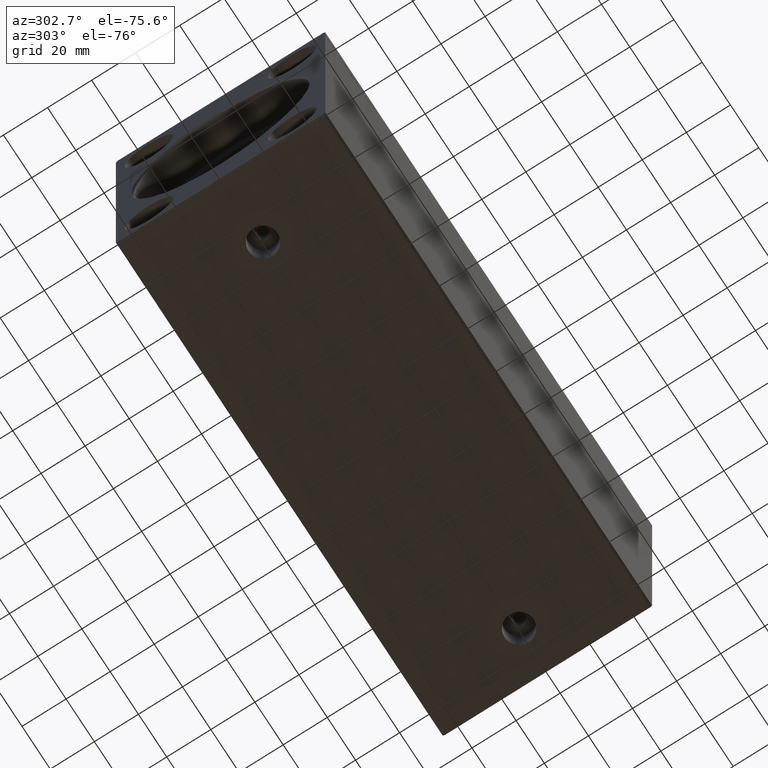
[diagram: clean part render]
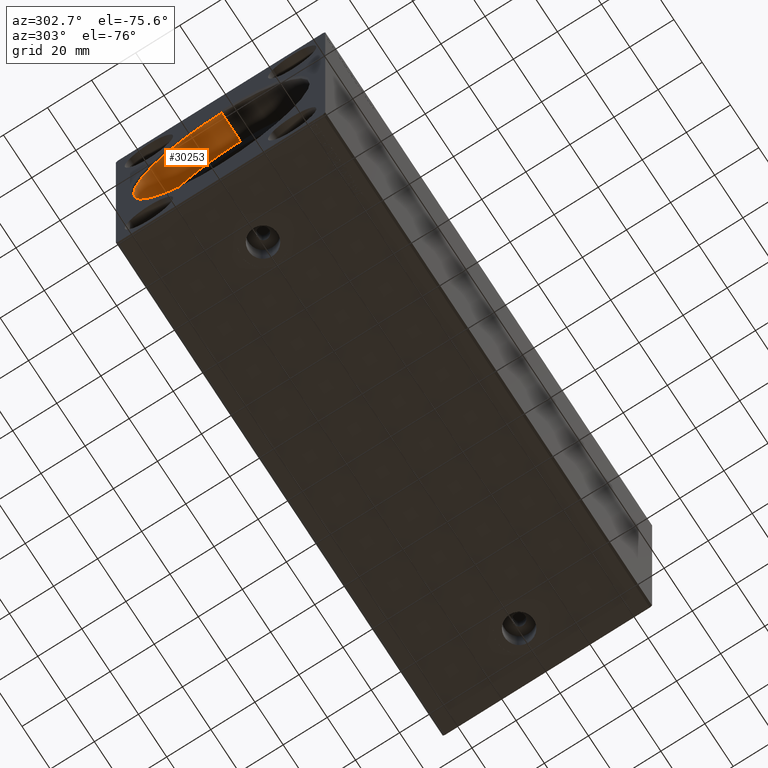
[diagram: same view with one face highlighted and labeled with its STEP entity id]
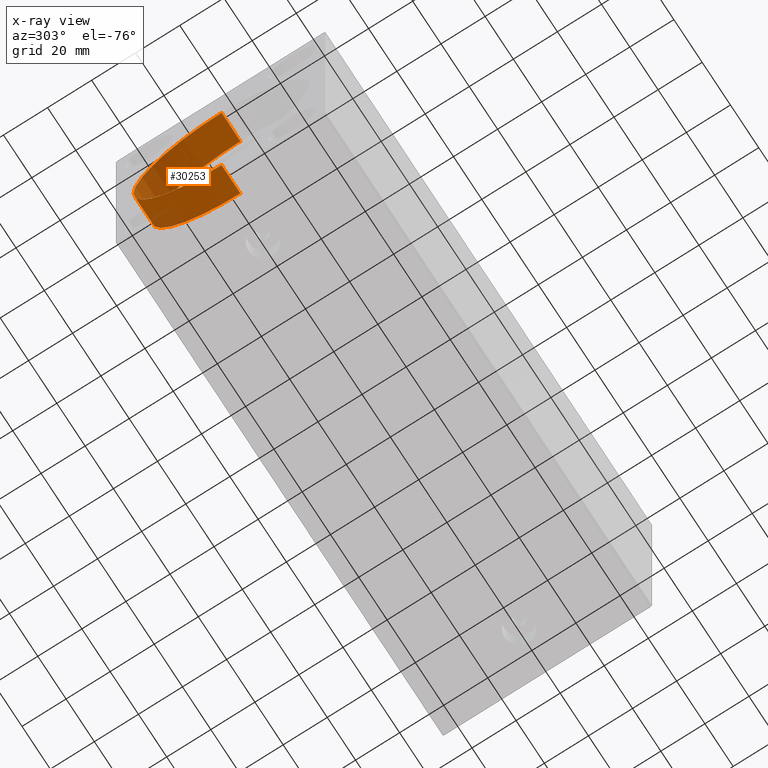
[diagram: x-ray of the same camera — body ghosted, the highlighted face saturated]
A machine part, auxiliary view. The second image highlights one B-rep face of the part: STEP entity #30253.
The next image is the same camera in x-ray: the body ghosted, the highlighted face saturated — about 8% of this face is hidden behind the body in this view.
In plain terms, the highlighted cylindrical surface (partial cylindrical patch) has radius 40 mm, axis along (-1, -0, -0).
Its self-contained STEP definition (entity closure, byte-faithful):
#900 = CARTESIAN_POINT ( 'NONE',  ( 0.7000000000000130562, 0.000000000000000000, 40.00000000000000000 ) ) ;
#2201 = CIRCLE ( 'NONE', #26196, 40.00000000000000000 ) ;
#2595 = DIRECTION ( 'NONE',  ( 0.000000000000000000, 0.000000000000000000, -1.000000000000000000 ) ) ;
#5926 = EDGE_CURVE ( 'NONE', #30154, #18855, #2201, .T. ) ;
#6734 = VERTEX_POINT ( 'NONE', #26681 ) ;
#8164 = CARTESIAN_POINT ( 'NONE',  ( 0.7000000000000130562, 4.898587196589413026E-15, -40.00000000000000000 ) ) ;
#8746 = CARTESIAN_POINT ( 'NONE',  ( 14.00000000000000000, 0.000000000000000000, 40.00000000000000000 ) ) ;
#10213 = EDGE_CURVE ( 'NONE', #38179, #30154, #15008, .T. ) ;
#11170 = EDGE_LOOP ( 'NONE', ( #11778, #41192, #34983, #39604 ) ) ;
#11762 = LINE ( 'NONE', #14985, #19685 ) ;
#11778 = ORIENTED_EDGE ( 'NONE', *, *, #30790, .F. ) ;
#12496 = DIRECTION ( 'NONE',  ( -1.000000000000000000, -0.000000000000000000, -0.000000000000000000 ) ) ;
#14985 = CARTESIAN_POINT ( 'NONE',  ( 14.00000000000000000, 4.898587196589413026E-15, -40.00000000000000000 ) ) ;
#15008 = LINE ( 'NONE', #15218, #30397 ) ;
#15218 = CARTESIAN_POINT ( 'NONE',  ( 14.00000000000000000, 0.000000000000000000, 40.00000000000000000 ) ) ;
#18726 = FACE_OUTER_BOUND ( 'NONE', #11170, .T. ) ;
#18855 = VERTEX_POINT ( 'NONE', #8164 ) ;
#19685 = VECTOR ( 'NONE', #25069, 1000.000000000000000 ) ;
#22359 = DIRECTION ( 'NONE',  ( 0.000000000000000000, 0.000000000000000000, 1.000000000000000000 ) ) ;
#23128 = AXIS2_PLACEMENT_3D ( 'NONE', #31833, #12496, #22359 ) ;
#23204 = AXIS2_PLACEMENT_3D ( 'NONE', #23756, #33426, #24184 ) ;
#23756 = CARTESIAN_POINT ( 'NONE',  ( 14.00000000000000000, 0.000000000000000000, 0.000000000000000000 ) ) ;
#24184 = DIRECTION ( 'NONE',  ( 0.000000000000000000, 0.000000000000000000, 1.000000000000000000 ) ) ;
#25069 = DIRECTION ( 'NONE',  ( -1.000000000000000000, -0.000000000000000000, -0.000000000000000000 ) ) ;
#25385 = CYLINDRICAL_SURFACE ( 'NONE', #23128, 40.00000000000000000 ) ;
#26196 = AXIS2_PLACEMENT_3D ( 'NONE', #32648, #35246, #2595 ) ;
#26681 = CARTESIAN_POINT ( 'NONE',  ( 14.00000000000000000, 4.898587196589413026E-15, -40.00000000000000000 ) ) ;
#28106 = DIRECTION ( 'NONE',  ( -1.000000000000000000, -0.000000000000000000, -0.000000000000000000 ) ) ;
#30154 = VERTEX_POINT ( 'NONE', #900 ) ;
#30253 = ADVANCED_FACE ( 'NONE', ( #18726 ), #25385, .F. ) ;
#30397 = VECTOR ( 'NONE', #28106, 1000.000000000000000 ) ;
#30790 = EDGE_CURVE ( 'NONE', #6734, #18855, #11762, .T. ) ;
#31833 = CARTESIAN_POINT ( 'NONE',  ( 14.00000000000000000, 0.000000000000000000, 0.000000000000000000 ) ) ;
#32648 = CARTESIAN_POINT ( 'NONE',  ( 0.7000000000000130562, 0.000000000000000000, 0.000000000000000000 ) ) ;
#33426 = DIRECTION ( 'NONE',  ( -1.000000000000000000, 0.000000000000000000, 0.000000000000000000 ) ) ;
#34983 = ORIENTED_EDGE ( 'NONE', *, *, #10213, .T. ) ;
#35246 = DIRECTION ( 'NONE',  ( -1.000000000000000000, 0.000000000000000000, 0.000000000000000000 ) ) ;
#38179 = VERTEX_POINT ( 'NONE', #8746 ) ;
#39604 = ORIENTED_EDGE ( 'NONE', *, *, #5926, .T. ) ;
#39768 = CIRCLE ( 'NONE', #23204, 40.00000000000000000 ) ;
#41192 = ORIENTED_EDGE ( 'NONE', *, *, #42386, .F. ) ;
#42386 = EDGE_CURVE ( 'NONE', #38179, #6734, #39768, .T. ) ;